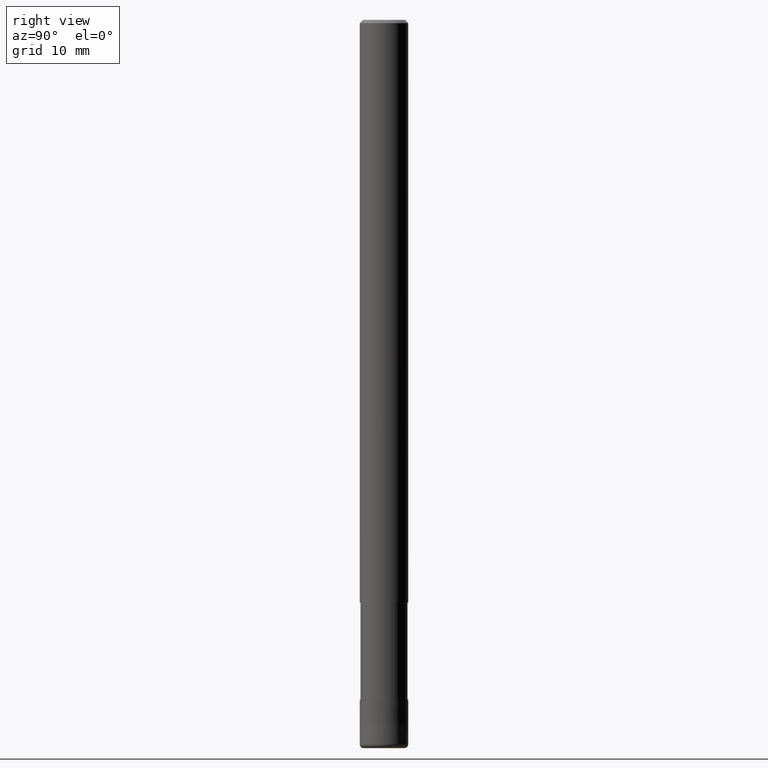
[diagram: clean part render]
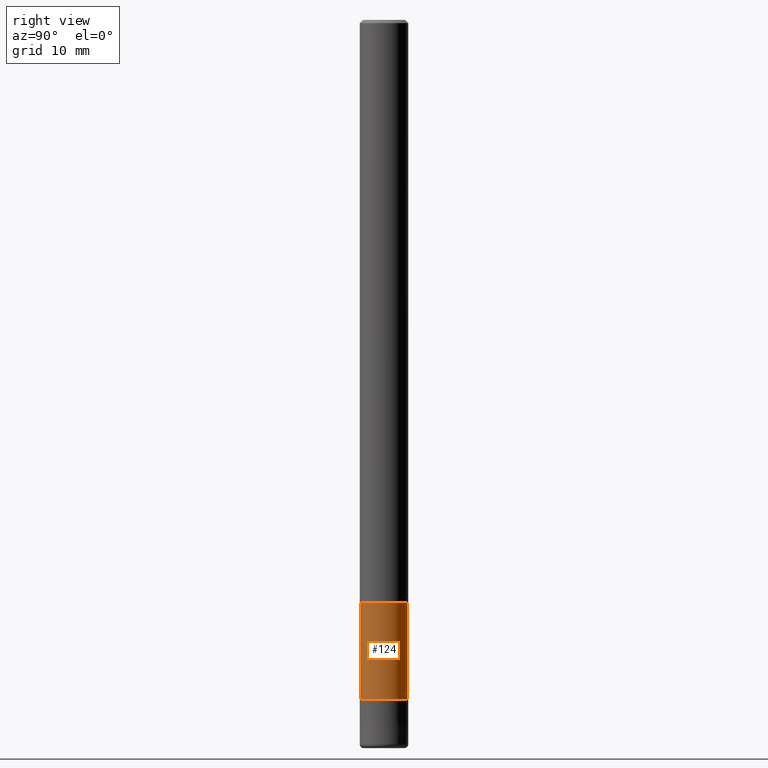
[diagram: same view with one face highlighted and labeled with its STEP entity id]
A machine part, right view. The second image highlights one B-rep face of the part: STEP entity #124.
In plain terms, the highlighted cylindrical surface (edge-blend (fillet) strip) has radius 2.9099 mm, axis along (-0, -0, 1).
Its self-contained STEP definition (entity closure, byte-faithful):
#118=VERTEX_POINT('',#256);
#124=ADVANCED_FACE('',(#264),#265,.T.);
#132=VERTEX_POINT('',#274);
#134=EDGE_CURVE('',#132,#138,#276,.T.);
#138=VERTEX_POINT('',#280);
#144=EDGE_CURVE('',#204,#138,#287,.T.);
#148=EDGE_CURVE('',#118,#132,#291,.T.);
#156=EDGE_CURVE('',#204,#118,#299,.T.);
#204=VERTEX_POINT('',#356);
#256=CARTESIAN_POINT('',(0.0,2.90995,-84.0));
#264=FACE_OUTER_BOUND('',#418,.T.);
#265=CYLINDRICAL_SURFACE('',#419,2.90995);
#274=CARTESIAN_POINT('',(3.56354325930543E-016,-2.90995,-84.0));
#276=LINE('',#431,#432);
#280=CARTESIAN_POINT('',(3.56354325930543E-016,-2.90995,-72.0));
#287=CIRCLE('',#446,2.90995);
#291=CIRCLE('',#452,2.90995);
#299=LINE('',#462,#463);
#356=CARTESIAN_POINT('',(0.0,2.90995,-72.0));
#418=EDGE_LOOP('',(#576,#577,#578,#579));
#419=AXIS2_PLACEMENT_3D('',#580,#581,#582);
#431=CARTESIAN_POINT('',(3.56354325930543E-016,-2.90995,-78.0));
#432=VECTOR('',#595,1.0);
#446=AXIS2_PLACEMENT_3D('',#605,#606,#607);
#452=AXIS2_PLACEMENT_3D('',#611,#612,#613);
#462=CARTESIAN_POINT('',(-3.56354325930543E-016,2.90995,-78.0));
#463=VECTOR('',#617,1.0);
#576=ORIENTED_EDGE('',*,*,#156,.F.);
#577=ORIENTED_EDGE('',*,*,#144,.T.);
#578=ORIENTED_EDGE('',*,*,#134,.F.);
#579=ORIENTED_EDGE('',*,*,#148,.F.);
#580=CARTESIAN_POINT('',(0.0,0.0,-78.0));
#581=DIRECTION('',(-0.0,-0.0,1.0));
#582=DIRECTION('',(0.0,1.0,0.0));
#595=DIRECTION('',(-0.0,-0.0,1.0));
#605=CARTESIAN_POINT('',(0.0,0.0,-72.0));
#606=DIRECTION('',(0.0,0.0,-1.0));
#607=DIRECTION('',(0.0,1.0,0.0));
#611=CARTESIAN_POINT('',(0.0,0.0,-84.0));
#612=DIRECTION('',(0.0,0.0,-1.0));
#613=DIRECTION('',(0.0,1.0,0.0));
#617=DIRECTION('',(0.0,0.0,-1.0));